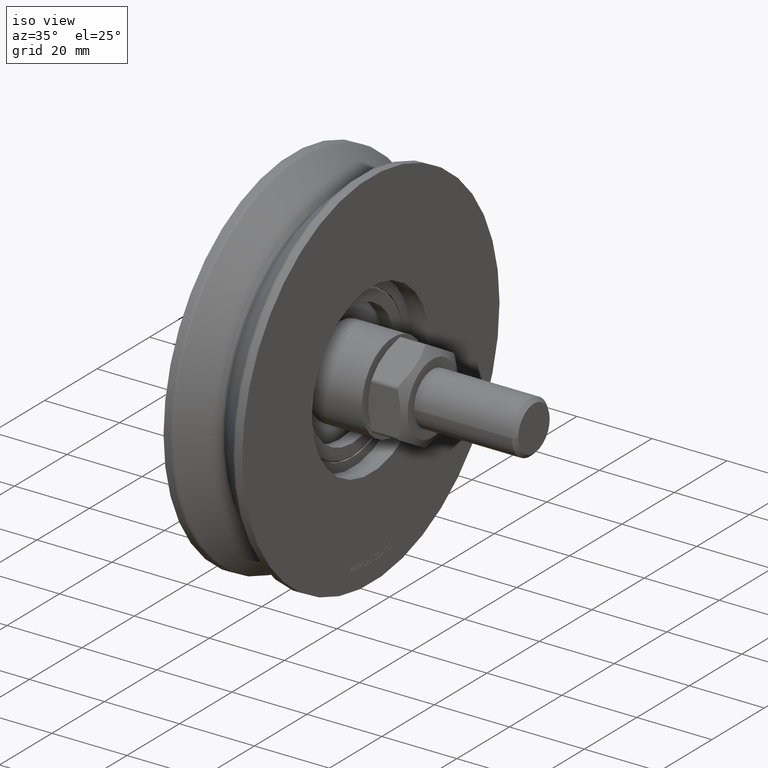
[diagram: clean part render]
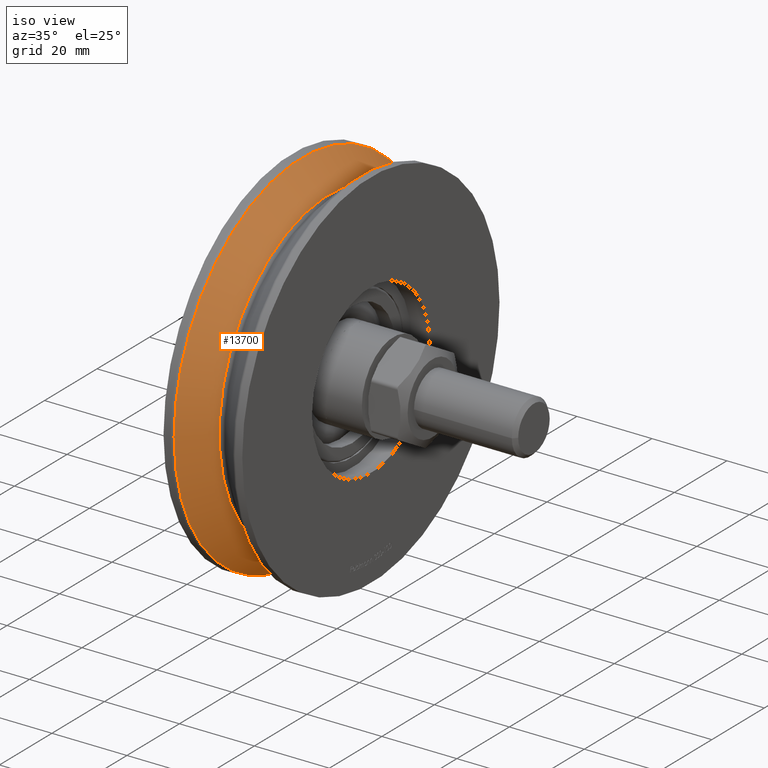
[diagram: same view with one face highlighted and labeled with its STEP entity id]
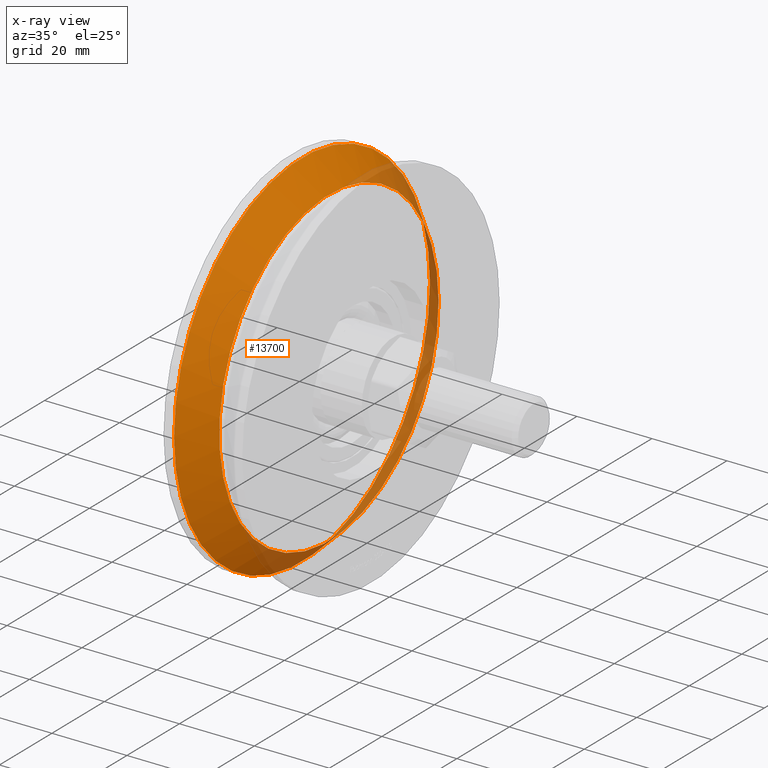
[diagram: x-ray of the same camera — body ghosted, the highlighted face saturated]
A machine part, iso view. The second image highlights one B-rep face of the part: STEP entity #13700.
The next image is the same camera in x-ray: the body ghosted, the highlighted face saturated — about 19% of this face is hidden behind the body in this view.
In plain terms, the highlighted conical surface has half-angle 44 deg.
Its self-contained STEP definition (entity closure, byte-faithful):
#50 = EDGE_CURVE ( 'NONE', #6718, #6718, #3881, .T. ) ;
#91 = ORIENTED_EDGE ( 'NONE', *, *, #50, .T. ) ;
#476 = DIRECTION ( 'NONE',  ( -1.297492867877531113E-16, 1.000000000000000000, 0.000000000000000000 ) ) ;
#1874 = CARTESIAN_POINT ( 'NONE',  ( -0.6946583704589960329, 41.78066019966134803, 0.000000000000000000 ) ) ;
#2921 = EDGE_LOOP ( 'NONE', ( #91 ) ) ;
#3514 = DIRECTION ( 'NONE',  ( 1.000000000000000000, 1.298867817277494870E-16, -0.000000000000000000 ) ) ;
#3881 = CIRCLE ( 'NONE', #13763, 48.71933980033865197 ) ;
#4807 = CARTESIAN_POINT ( 'NONE',  ( -0.6946583704589905928, 1.273584268002208081E-15, 0.000000000000000000 ) ) ;
#5669 = CONICAL_SURFACE ( 'NONE', #6688, 41.78066019966134803, 0.7679448708775032939 ) ;
#6021 = FACE_OUTER_BOUND ( 'NONE', #2921, .T. ) ;
#6688 = AXIS2_PLACEMENT_3D ( 'NONE', #7298, #8438, #7247 ) ;
#6718 = VERTEX_POINT ( 'NONE', #9686 ) ;
#6771 = DIRECTION ( 'NONE',  ( -1.424258607022215051E-16, 1.000000000000000000, 0.000000000000000000 ) ) ;
#7247 = DIRECTION ( 'NONE',  ( 1.297492867877531113E-16, -1.000000000000000000, 0.000000000000000000 ) ) ;
#7298 = CARTESIAN_POINT ( 'NONE',  ( -0.6946583704589905928, 1.273584268002208081E-15, 0.000000000000000000 ) ) ;
#8438 = DIRECTION ( 'NONE',  ( -1.000000000000000000, -1.298867817277494870E-16, 0.000000000000000000 ) ) ;
#8968 = EDGE_LOOP ( 'NONE', ( #14053 ) ) ;
#9686 = CARTESIAN_POINT ( 'NONE',  ( -7.879871434640613792, 48.71933980033865197, 0.000000000000000000 ) ) ;
#10262 = CARTESIAN_POINT ( 'NONE',  ( -7.879871434640606687, 3.403200670674765032E-16, 0.000000000000000000 ) ) ;
#10385 = VERTEX_POINT ( 'NONE', #1874 ) ;
#10531 = DIRECTION ( 'NONE',  ( 1.000000000000000000, 1.298867817277494870E-16, -0.000000000000000000 ) ) ;
#10766 = FACE_BOUND ( 'NONE', #8968, .T. ) ;
#11198 = AXIS2_PLACEMENT_3D ( 'NONE', #4807, #10531, #476 ) ;
#12004 = CIRCLE ( 'NONE', #11198, 41.78066019966134803 ) ;
#13626 = EDGE_CURVE ( 'NONE', #10385, #10385, #12004, .T. ) ;
#13700 = ADVANCED_FACE ( 'NONE', ( #6021, #10766 ), #5669, .T. ) ;
#13763 = AXIS2_PLACEMENT_3D ( 'NONE', #10262, #3514, #6771 ) ;
#14053 = ORIENTED_EDGE ( 'NONE', *, *, #13626, .F. ) ;